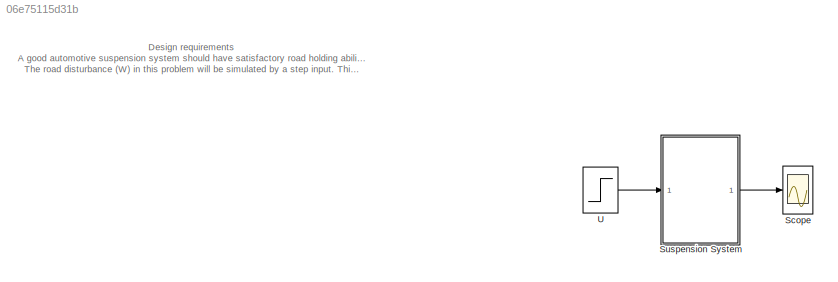
MODEL slx_06e75115d31b
KIND model
CONFIG AbsTol = auto
CONFIG EnableMultiTasking = off
CONFIG FixedStep = auto
CONFIG MaxStep = auto
CONFIG MinStep = auto
CONFIG PreLoadFcn = clearvars;\nm1 = 2500;\nm2 = 320;\nk1 = 80000;\nk2 = 500000;\nb1 = 350;\nb2 = 15020;
CONFIG RelTol = 1e-3
CONFIG SampleTimeConstraint = Unconstrained
CONFIG SolverName = VariableStepAuto
CONFIG StartTime = 0.0
CONFIG StopTime = 50.0
BLOCK [Scope] Scope
  Floating = off
  NumInputPorts = 1
  Ports = [1]
  ScopeSpecificationString = Simulink.scopes.TimeScopeBlockCfg('CurrentConfiguration', extmgr.ConfigurationSet(extmgr.Configuration('Core','General UI',true),extmgr.Configuration('Core','Source UI',true),extmgr.Configuration('Sources','WiredSimulink',true),extmgr.Configuration('Visuals','Time Domain',true,'SerializedDisplays',{struct('MinYLimReal','-0.000003','MaxYLimReal','0.000025','YLabelReal','','MinYLimMag','0.000000','M...<+1380ch>
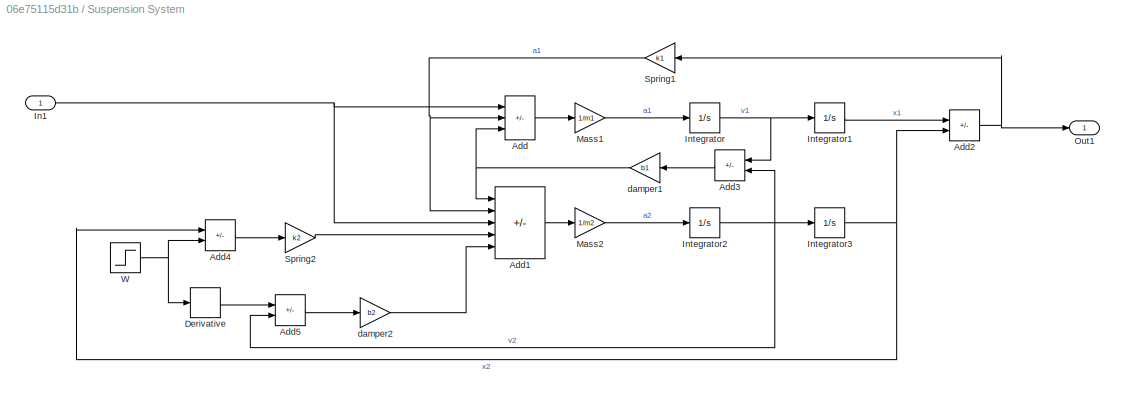
BLOCK [SubSystem] Suspension System
  Ports = [1, 1]
  RequestExecContextInheritance = off
BLOCK [Sum] Suspension System/Add
  IconShape = rectangular
  Inputs = +--
  Ports = [3, 1]
BLOCK [Sum] Suspension System/Add1
  IconShape = rectangular
  Inputs = ++-++
  Ports = [5, 1]
BLOCK [Sum] Suspension System/Add2
  IconShape = rectangular
  Inputs = +-
  Ports = [2, 1]
BLOCK [Sum] Suspension System/Add3
  IconShape = rectangular
  Inputs = +-
  NameLocation = top
  Ports = [2, 1]
BLOCK [Sum] Suspension System/Add4
  IconShape = rectangular
  Inputs = -+
  Ports = [2, 1]
BLOCK [Sum] Suspension System/Add5
  IconShape = rectangular
  Inputs = +-
  Ports = [2, 1]
BLOCK [Derivative] Suspension System/Derivative
BLOCK [Inport] Suspension System/In1
BLOCK [Integrator] Suspension System/Integrator
  Ports = [1, 1]
BLOCK [Integrator] Suspension System/Integrator1
  Ports = [1, 1]
BLOCK [Integrator] Suspension System/Integrator2
  Ports = [1, 1]
BLOCK [Integrator] Suspension System/Integrator3
  Ports = [1, 1]
BLOCK [Gain] Suspension System/Mass1
  Gain = 1/m1
BLOCK [Gain] Suspension System/Mass2
  Gain = 1/m2
BLOCK [Outport] Suspension System/Out1
BLOCK [Gain] Suspension System/Spring1
  Gain = k1
  NameLocation = top
BLOCK [Gain] Suspension System/Spring2
  Gain = k2
BLOCK [Step] Suspension System/W
  After = 0
  SampleTime = 0
  Time = 0
BLOCK [Gain] Suspension System/damper1
  Gain = b1
  NameLocation = top
BLOCK [Gain] Suspension System/damper2
  Gain = b2
BLOCK [Step] U
  SampleTime = 0
  Time = 0
ANNOTATION (root): Design requirements A good automotive suspension system should have satisfactory road holding ability, while still providing comfort when riding over bumps and holes in the road. When the vehicle is experiencing any road disturbance (i.e. pot holes, cracks, and uneven pavement),the vehicle body should not have large oscillations, and the oscillations should dissipate quickly. Since the distance X1...<+648ch>
LINE Suspension System/Add1:1 -> Suspension System/Mass2:1
NET Suspension System/Add2:1 -> Suspension System/Out1:1, Suspension System/Spring1:1
LINE Suspension System/Add3:1 -> Suspension System/damper1:1
LINE Suspension System/Add4:1 -> Suspension System/Spring2:1
LINE Suspension System/Add5:1 -> Suspension System/damper2:1
LINE Suspension System/Add:1 -> Suspension System/Mass1:1
LINE Suspension System/Derivative:1 -> Suspension System/Add5:1
NET Suspension System/In1:1 -> Suspension System/Add1:3, Suspension System/Add:1
LINE Suspension System/Integrator1:1 -> Suspension System/Add2:1
NET Suspension System/Integrator2:1 -> Suspension System/Add3:2, Suspension System/Add5:2, Suspension System/Integrator3:1
NET Suspension System/Integrator3:1 -> Suspension System/Add2:2, Suspension System/Add4:1
NET Suspension System/Integrator:1 -> Suspension System/Add3:1, Suspension System/Integrator1:1
LINE Suspension System/Mass1:1 -> Suspension System/Integrator:1
LINE Suspension System/Mass2:1 -> Suspension System/Integrator2:1
NET Suspension System/Spring1:1 -> Suspension System/Add1:2, Suspension System/Add:2
LINE Suspension System/Spring2:1 -> Suspension System/Add1:4
NET Suspension System/W:1 -> Suspension System/Add4:2, Suspension System/Derivative:1
NET Suspension System/damper1:1 -> Suspension System/Add1:1, Suspension System/Add:3
LINE Suspension System/damper2:1 -> Suspension System/Add1:5
LINE Suspension System:1 -> Scope:1
LINE U:1 -> Suspension System:1
note: NET lines group one-source signal fan-out (src -> all destinations, sorted); 1:1 wires keep LINE
